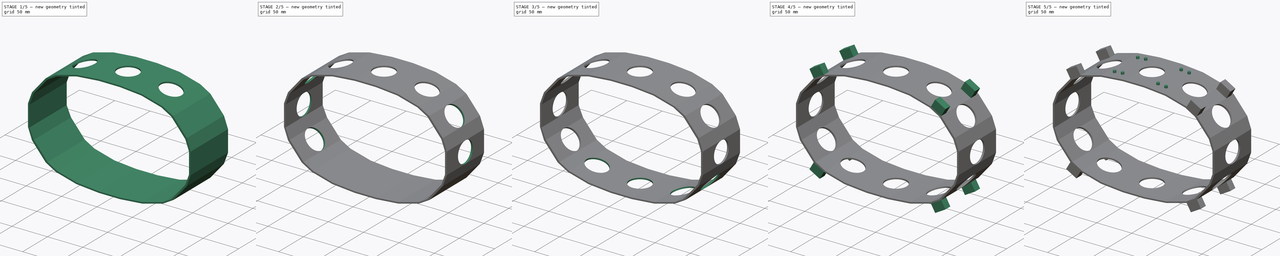
[diagram: build sequence overview — one tinted view per stage of 5, left to right]
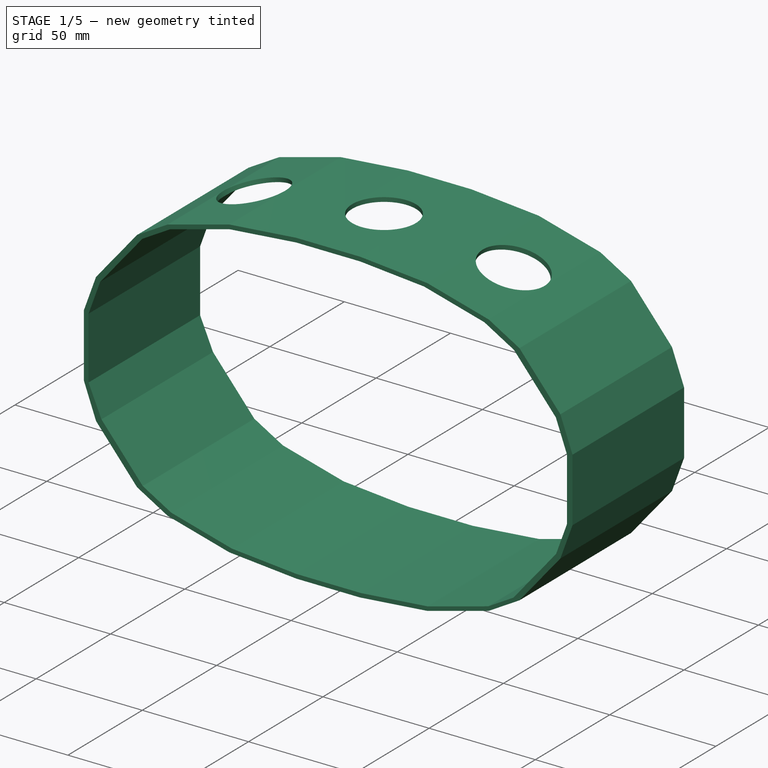
[diagram: stage 1 of 5 — iso view after this stage's code; geometry added in this stage tinted green]
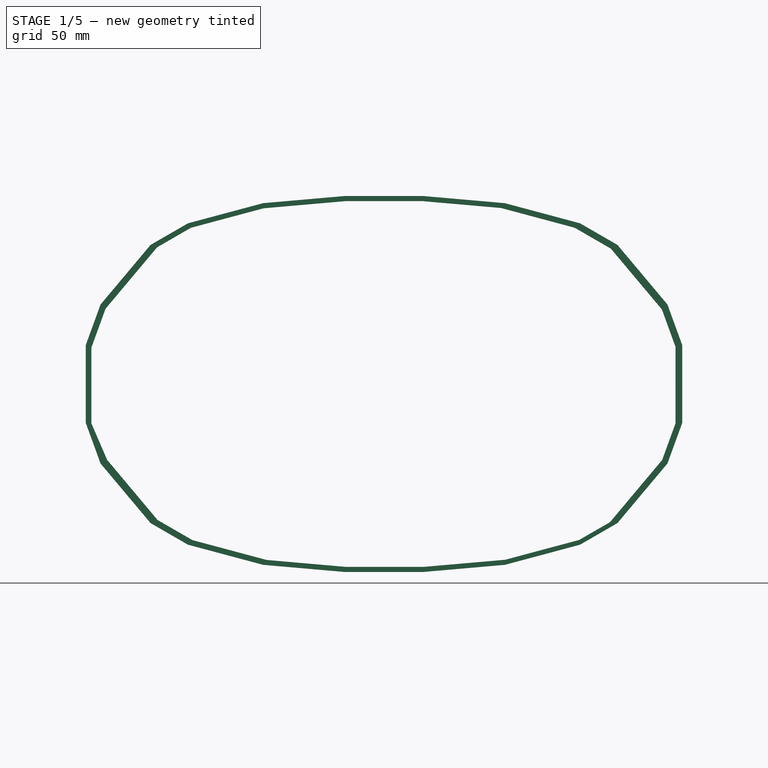
[diagram: stage 1 of 5 — front view after this stage's code; geometry added in this stage tinted green]
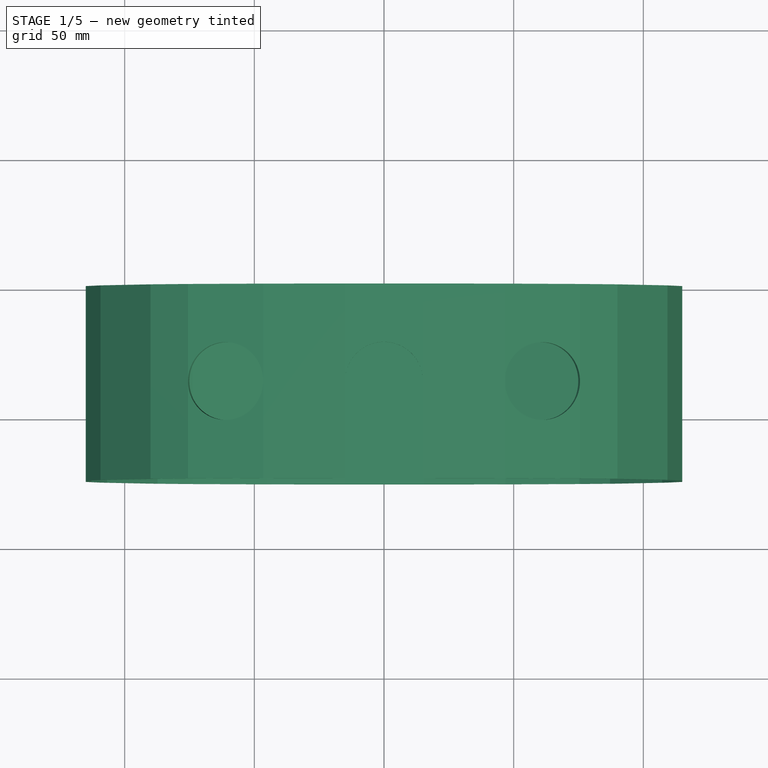
[diagram: stage 1 of 5 — top view after this stage's code; geometry added in this stage tinted green]
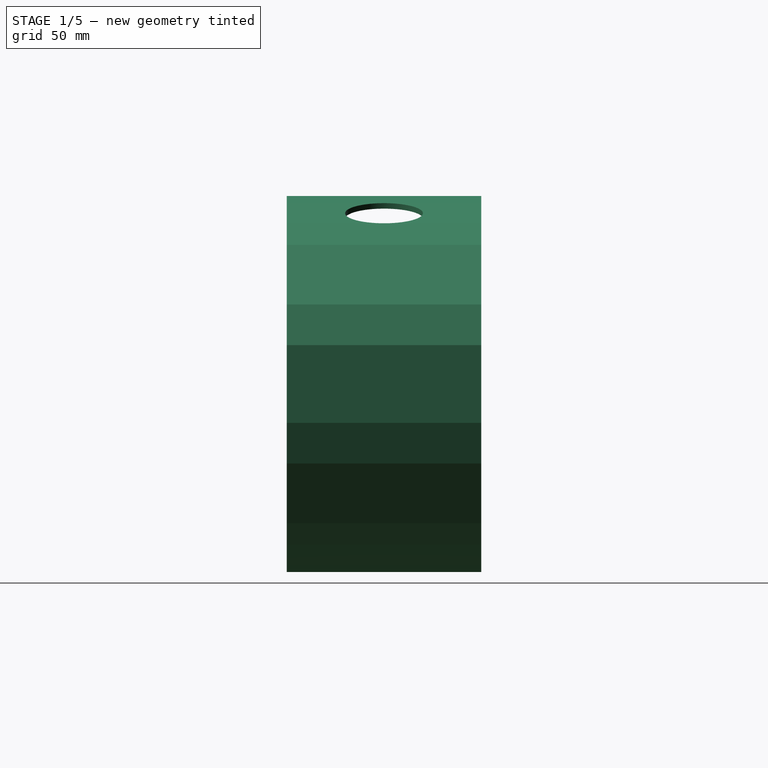
[diagram: stage 1 of 5 — right view after this stage's code; geometry added in this stage tinted green]
FCSTD DOCUMENT  (FreeCAD 0.20R29177 +233 (Git))
Label: btm_spr_modl_sh03
License: All rights reserved
LicenseURL: http://en.wikipedia.org/wiki/All_rights_reserved
objects: Sketcher::SketchObject×22, PartDesign::Pocket×12, PartDesign::Pad×10, Spreadsheet::Sheet×1, PartDesign::Body×1
note: 67 computed .brp shape members not serialized (recipe doc carries the construction recipe); baked Part::Feature solids carry a one-line shape summary decoded from their .brp

FEATURE [Spreadsheet::Sheet] Spreadsheet
  cells = B2=top ; C2=spring; D2=module; B4=horizon; C4(hrz)=230; B5=vertical; C5(vrt)=145; B6=spring place; C6(spl)=30; B7=angle10; C7(an10)=5; B8=angle20; C8(an20)=15; B9=angl30; C9(an30)=30; B10=angl50; C10(an50)=50; B11=an70; C11(an70)=70; B12=body; C12(body)=15; B13=bottm; C13(btm)=2; B14=rad hole; C14(hol_rad)=15; B15=dip hole; C15(hol_dp)=3; B16=shift hole; C16(hole_sh)=37.5
FEATURE [Sketcher::SketchObject] Sketch
  FullyConstrained = false
  MapMode = 5
  Placement = pos=(0,0,0) rot=(1,0,0;1.5708rad)
  Support = -> [XZ_Plane]
  expr: Constraints[105] = Spreadsheet.btm
  expr: Constraints[11] = Spreadsheet.hrz
  expr: Constraints[13] = Spreadsheet.an10
  expr: Constraints[15] = Spreadsheet.spl
  expr: Constraints[16] = Spreadsheet.an20
  expr: Constraints[18] = Spreadsheet.an30
  expr: Constraints[20] = Spreadsheet.spl
  expr: Constraints[21] = Spreadsheet.an50
  expr: Constraints[24] = Spreadsheet.an70
  expr: Constraints[2] = Spreadsheet.spl
  expr: Constraints[57] = Spreadsheet.btm
  expr: Constraints[58] = Spreadsheet.spl
  expr: Constraints[6] = Spreadsheet.vrt
  expr: Constraints[7] = Spreadsheet.spl
  sketch-geometry (48):
    g0: LineSegment StartX=-115 StartY=15 StartZ=0 EndX=-115 EndY=-15 EndZ=0
    g1: LineSegment StartX=115 StartY=15 StartZ=0 EndX=115 EndY=-15 EndZ=0
    g2: LineSegment StartX=-15 StartY=72.5 StartZ=0 EndX=15 EndY=72.5 EndZ=0
    g3: LineSegment StartX=-15 StartY=-72.5 StartZ=0 EndX=15 EndY=-72.5 EndZ=0
    g4: LineSegment StartX=15 StartY=72.5 StartZ=0 EndX=46.6098 EndY=69.7345 EndZ=0
    g5: LineSegment StartX=46.6098 StartY=69.7345 StartZ=0 EndX=75.5875 EndY=61.9699 EndZ=0
    g6: LineSegment StartX=75.5875 StartY=61.9699 StartZ=0 EndX=90.0175 EndY=53.6388 EndZ=0
    g7: LineSegment StartX=90.0175 StartY=53.6388 StartZ=0 EndX=109.301 EndY=30.6574 EndZ=0
    g8: LineSegment StartX=109.301 StartY=30.6574 StartZ=0 EndX=115 EndY=15 EndZ=0
    g9: LineSegment StartX=-15 StartY=72.5 StartZ=0 EndX=-46.6098 EndY=69.7345 EndZ=0
    g10: LineSegment StartX=-46.6098 StartY=69.7345 StartZ=0 EndX=-75.5875 EndY=61.9699 EndZ=0
    g11: LineSegment StartX=-75.5875 StartY=61.9699 StartZ=0 EndX=-90.0175 EndY=53.6388 EndZ=0
    g12: LineSegment StartX=-90.0175 StartY=53.6388 StartZ=0 EndX=-109.301 EndY=30.6574 EndZ=0
    g13: LineSegment StartX=-109.301 StartY=30.6574 StartZ=0 EndX=-115 EndY=15 EndZ=0
    g14: LineSegment StartX=-115 StartY=-15 StartZ=0 EndX=-109.301 EndY=-30.6574 EndZ=0
    g15: LineSegment StartX=-109.301 StartY=-30.6574 StartZ=0 EndX=-90.0175 EndY=-53.6388 EndZ=0
    g16: LineSegment StartX=-90.0175 StartY=-53.6388 StartZ=0 EndX=-75.5875 EndY=-61.9699 EndZ=0
    g17: LineSegment StartX=-75.5875 StartY=-61.9699 StartZ=0 EndX=-46.6098 EndY=-69.7345 EndZ=0
    g18: LineSegment StartX=-46.6098 StartY=-69.7345 StartZ=0 EndX=-15 EndY=-72.5 EndZ=0
    g19: LineSegment StartX=15 StartY=-72.5 StartZ=0 EndX=46.6098 EndY=-69.7345 EndZ=0
    g20: LineSegment StartX=46.6098 StartY=-69.7345 StartZ=0 EndX=75.5875 EndY=-61.9699 EndZ=0
    g21: LineSegment StartX=75.5875 StartY=-61.9699 StartZ=0 EndX=90.0175 EndY=-53.6388 EndZ=0
    g22: LineSegment StartX=90.0175 StartY=-53.6388 StartZ=0 EndX=109.301 EndY=-30.6574 EndZ=0
    g23: LineSegment StartX=109.301 StartY=-30.6574 StartZ=0 EndX=115 EndY=-15 EndZ=0
    g24: LineSegment StartX=-15 StartY=70.5 StartZ=0 EndX=15 EndY=70.5 EndZ=0
    g25: LineSegment StartX=-15 StartY=70.5 StartZ=0 EndX=-46.4214 EndY=67.751 EndZ=0
    g26: LineSegment StartX=-46.4214 StartY=67.751 StartZ=0 EndX=-74.4554 EndY=60.2393 EndZ=0
    g27: LineSegment StartX=-74.4554 StartY=60.2393 StartZ=0 EndX=-87.4996 EndY=52.7082 EndZ=0
    g28: LineSegment StartX=-87.4996 StartY=52.7082 StartZ=0 EndX=-107.378 EndY=29.0181 EndZ=0
    g29: LineSegment StartX=-107.378 StartY=29.0181 StartZ=0 EndX=-112.824 EndY=14.0555 EndZ=0
    g30: LineSegment StartX=-112.824 StartY=14.0555 StartZ=0 EndX=-112.824 EndY=-15.2096 EndZ=0
    g31: LineSegment StartX=15 StartY=70.5 StartZ=0 EndX=45.1475 EndY=67.8624 EndZ=0
    g32: LineSegment StartX=45.1475 StartY=67.8624 StartZ=0 EndX=73.5018 EndY=60.2649 EndZ=0
    g33: LineSegment StartX=73.5018 StartY=60.2649 StartZ=0 EndX=87.4929 EndY=52.1871 EndZ=0
    g34: LineSegment StartX=87.4929 StartY=52.1871 StartZ=0 EndX=107.166 EndY=28.7411 EndZ=0
    g35: LineSegment StartX=107.166 StartY=28.7411 StartZ=0 EndX=112.425 EndY=14.2934 EndZ=0
    g36: LineSegment StartX=112.425 StartY=14.2934 StartZ=0 EndX=112.425 EndY=-15.1293 EndZ=0
    g37: LineSegment StartX=112.425 StartY=-15.1293 StartZ=0 EndX=107.269 EndY=-29.2953 EndZ=0
    g38: LineSegment StartX=107.269 StartY=-29.2953 StartZ=0 EndX=87.141 EndY=-53.2828 EndZ=0
    g39: LineSegment StartX=87.141 StartY=-53.2828 StartZ=0 EndX=75.2863 EndY=-60.1272 EndZ=0
    g40: LineSegment StartX=75.2863 StartY=-60.1272 StartZ=0 EndX=46.7497 EndY=-67.7735 EndZ=0
    g41: LineSegment StartX=46.7497 StartY=-67.7735 StartZ=0 EndX=15.5585 EndY=-70.5024 EndZ=0
    g42: LineSegment StartX=15.5585 StartY=-70.5024 StartZ=0 EndX=-14.9018 EndY=-70.5024 EndZ=0
    g43: LineSegment StartX=-14.9018 StartY=-70.5024 StartZ=0 EndX=-45.3109 EndY=-67.842 EndZ=0
    g44: LineSegment StartX=-45.3109 StartY=-67.842 StartZ=0 EndX=-73.8953 EndY=-60.1828 EndZ=0
    g45: LineSegment StartX=-73.8953 StartY=-60.1828 StartZ=0 EndX=-87.3183 EndY=-52.433 EndZ=0
    g46: LineSegment StartX=-87.3183 StartY=-52.433 StartZ=0 EndX=-106.756 EndY=-29.2685 EndZ=0
    g47: LineSegment StartX=-106.756 StartY=-29.2685 StartZ=0 EndX=-112.824 EndY=-15.2096 EndZ=0
  constraints (106):
    c: Vertical(g0)
    c: Horizontal(g3)
    c: DistanceX(g2,g2) = 30
    c: Symmetric(g2,g2,g-2)
    c: Equal(g3,g2)
    c: Symmetric(g2,g3,g-1)
    c: Distance(g3,g2) = 145
    c: DistanceY(g1,g1) = 30
    c: Equal(g1,g0)
    c: Symmetric(g1,g1,g-1)
    c: Symmetric(g1,g0,g-1)
    c: Distance(g1,g0) = 230
    c: Coincident(g4,g2)
    c: Angle(g4,g-1) = 0.0872665
    c: Coincident(g5,g4)
    c: Distance(g4,g5) = 30
    c: Angle(g5,g-1) = 0.261799
    c: Coincident(g6,g5)
    c: Angle(g6,g-1) = 0.523599
    c: Coincident(g7,g6)
    c: Distance(g6,g7) = 30
    c: Angle(g7,g-1) = 0.872665
    c: Coincident(g8,g7)
    c: Coincident(g8,g1)
    c: Angle(g8,g-1) = 1.22173
    c: Equal(g6,g8)
    c: Coincident(g9,g2)
    c: Symmetric(g9,g4,g-2)
    c: Coincident(g10,g9)
    c: Symmetric(g10,g5,g-2)
    c: Coincident(g11,g10)
    c: Symmetric(g11,g6,g-2)
    c: Coincident(g12,g11)
    c: Symmetric(g12,g7,g-2)
    c: Coincident(g13,g12)
    c: Coincident(g13,g0)
    c: Coincident(g14,g0)
    c: Coincident(g15,g14)
    c: Coincident(g16,g15)
    c: Coincident(g17,g16)
    c: Coincident(g18,g17)
    c: Coincident(g18,g3)
    c: Symmetric(g14,g7,g-1)
    c: Symmetric(g15,g6,g-1)
    c: Symmetric(g16,g5,g-1)
    c: Symmetric(g17,g4,g-1)
    c: Coincident(g19,g3)
    c: Coincident(g20,g19)
    c: Coincident(g21,g20)
    c: Coincident(g22,g21)
    c: Coincident(g23,g22)
    c: Coincident(g23,g1)
    c: Symmetric(g19,g4,g-1)
    c: Symmetric(g20,g5,g-1)
    c: Symmetric(g21,g6,g-1)
    c: Symmetric(g22,g7,g-1)
    c: Symmetric(g24,g24,g-2)
    c: Distance(g24,g2) = 2
    c: DistanceX(g24,g24) = 30
    c: Coincident(g25,g24)
    c: Parallel(g9,g25)
    c: Coincident(g26,g25)
    c: Parallel(g10,g26)
    c: Coincident(g27,g26)
    c: Parallel(g11,g27)
    c: Coincident(g28,g27)
    c: Parallel(g12,g28)
    c: Coincident(g29,g28)
    c: Parallel(g13,g29)
    c: Coincident(g30,g29)
    c: Parallel(g0,g30)
    c: Coincident(g31,g24)
    c: Parallel(g4,g31)
    c: Coincident(g32,g31)
    c: Parallel(g5,g32)
    c: Coincident(g33,g32)
    c: Parallel(g6,g33)
    c: Coincident(g34,g33)
    c: Parallel(g7,g34)
    c: Coincident(g35,g34)
    c: Parallel(g8,g35)
    c: Coincident(g36,g35)
    c: Vertical(g36)
    c: Coincident(g37,g36)
    c: Parallel(g23,g37)
    c: Coincident(g38,g37)
    c: Parallel(g22,g38)
    c: Coincident(g39,g38)
    c: Parallel(g21,g39)
    c: Coincident(g40,g39)
    c: Parallel(g20,g40)
    c: Coincident(g41,g40)
    c: Parallel(g19,g41)
    c: Coincident(g42,g41)
    c: Horizontal(g42)
    c: Coincident(g43,g42)
    c: Parallel(g18,g43)
    c: Coincident(g44,g43)
    c: Parallel(g17,g44)
    c: Coincident(g45,g44)
    c: Parallel(g16,g45)
    c: Coincident(g46,g45)
    c: Parallel(g15,g46)
    c: Coincident(g47,g46)
    c: Coincident(g47,g30)
    c: Distance(g3,g42) = 2
FEATURE [PartDesign::Pad] Pad
  Direction = (1,1,1)
  Length = 75
  Length2 = 100
  Placement = pos=(0,0,0) rot=(1,0,0;1.5708rad)
  Profile = -> Sketch
  Type = 0
FEATURE [Sketcher::SketchObject] Sketch001
  FullyConstrained = true
  MapMode = 5
  Placement = pos=(0,0,72.5) rot=(0,0,1;3.14159rad)
  Support = -> [Pad]
  sketch-geometry (1):
    g0: Circle CenterX=0 CenterY=37.5 CenterZ=0 NormalX=0 NormalY=0 NormalZ=1 AngleXU=0 Radius=15
  constraints (3):
    c: PointOnObject(g0,g-2)
    c: Distance(g-1,g0) = 37.5
    c: Radius(g0) = 15
FEATURE [PartDesign::Pocket] Pocket
  BaseFeature = -> Pad
  Direction = (1,1,1)
  Length = 3
  Length2 = 100
  Placement = pos=(0,0,0) rot=(1,0,0;1.5708rad)
  Profile = -> Sketch001
  Type = 0
FEATURE [Sketcher::SketchObject] Sketch002
  ExternalGeometry = -> [Pocket]
  FullyConstrained = true
  MapMode = 5
  Placement = pos=(20.5559,0,76.7156) rot=(0.130526,0,0.991445;3.14159rad)
  Support = -> [Pocket]
  expr: Constraints[1] = Spreadsheet.hol_rad
  sketch-geometry (1):
    g0: Circle CenterX=-41.973 CenterY=37.5 CenterZ=0 NormalX=0 NormalY=0 NormalZ=1 AngleXU=0 Radius=15
  constraints (3):
    c: Tangent(g0,g-3)
    c: Radius(g0) = 15
    c: Distance(g0,g-1) = 37.5
FEATURE [PartDesign::Pocket] Pocket001
  BaseFeature = -> Pocket
  Direction = (1,1,1)
  Length = 3
  Length2 = 100
  Placement = pos=(0,0,0) rot=(1,0,0;1.5708rad)
  Profile = -> Sketch002
  Type = 0
  expr: Length = Spreadsheet.hol_dp
FEATURE [Sketcher::SketchObject] Sketch003
  ExternalGeometry = -> [Pocket001]
  FullyConstrained = true
  MapMode = 5
  Placement = pos=(-20.5559,0,76.7156) rot=(-0.130526,0,0.991445;3.14159rad)
  Support = -> [Pocket001]
  expr: Constraints[1] = Spreadsheet.hol_rad
  expr: Constraints[2] = Spreadsheet.hole_sh
  sketch-geometry (1):
    g0: Circle CenterX=41.973 CenterY=37.5 CenterZ=0 NormalX=0 NormalY=0 NormalZ=1 AngleXU=0 Radius=15
  constraints (3):
    c: Tangent(g0,g-3)
    c: Radius(g0) = 15
    c: Distance(g0,g-1) = 37.5
FEATURE [PartDesign::Pocket] Pocket002
  BaseFeature = -> Pocket001
  Direction = (1,1,1)
  Length = 3
  Length2 = 100
  Placement = pos=(0,0,0) rot=(1,0,0;1.5708rad)
  Profile = -> Sketch003
  Type = 0
  expr: Length = Spreadsheet.hol_dp
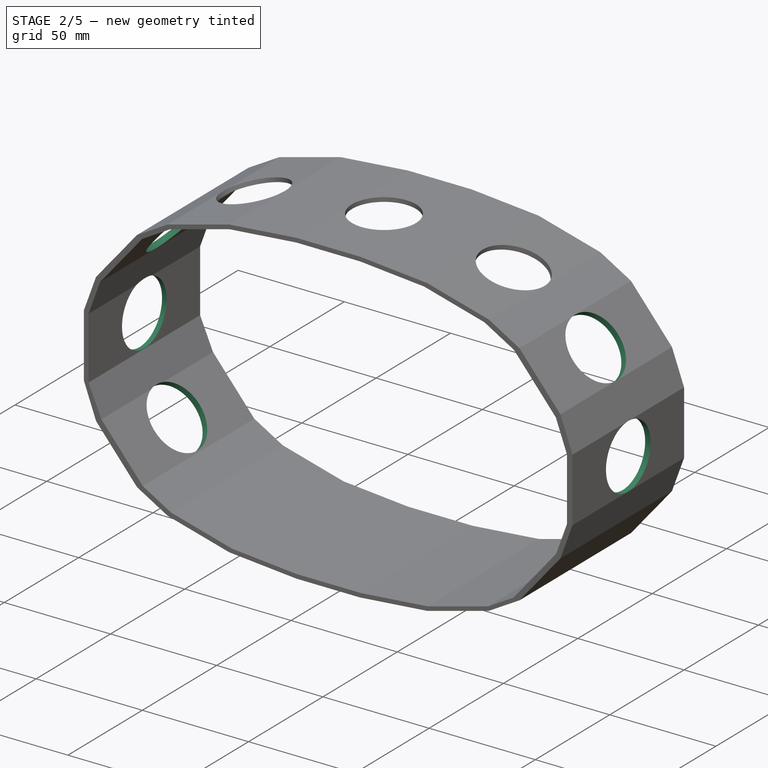
[diagram: stage 2 of 5 — iso view after this stage's code; geometry added in this stage tinted green]
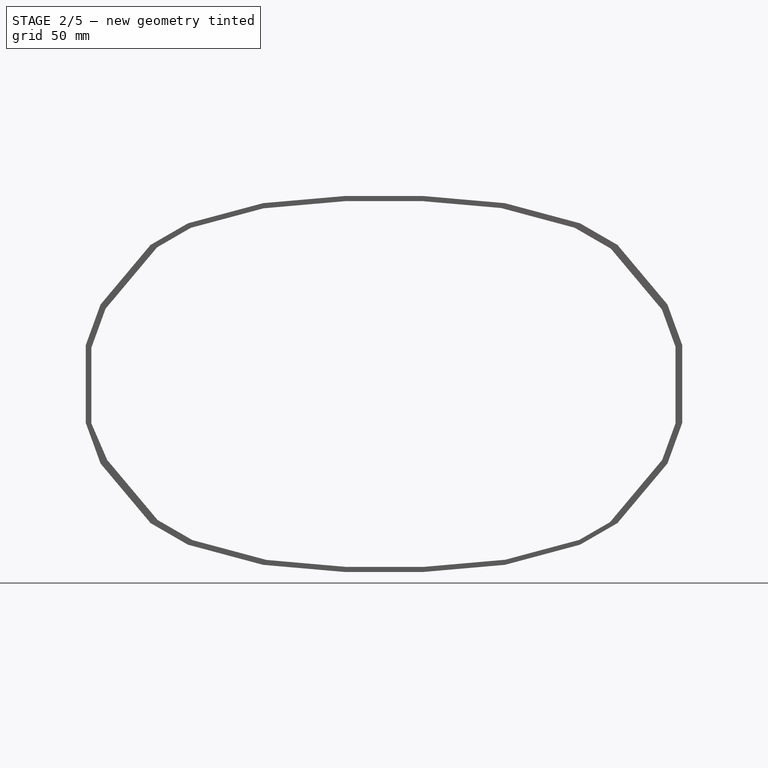
[diagram: stage 2 of 5 — front view after this stage's code; geometry added in this stage tinted green]
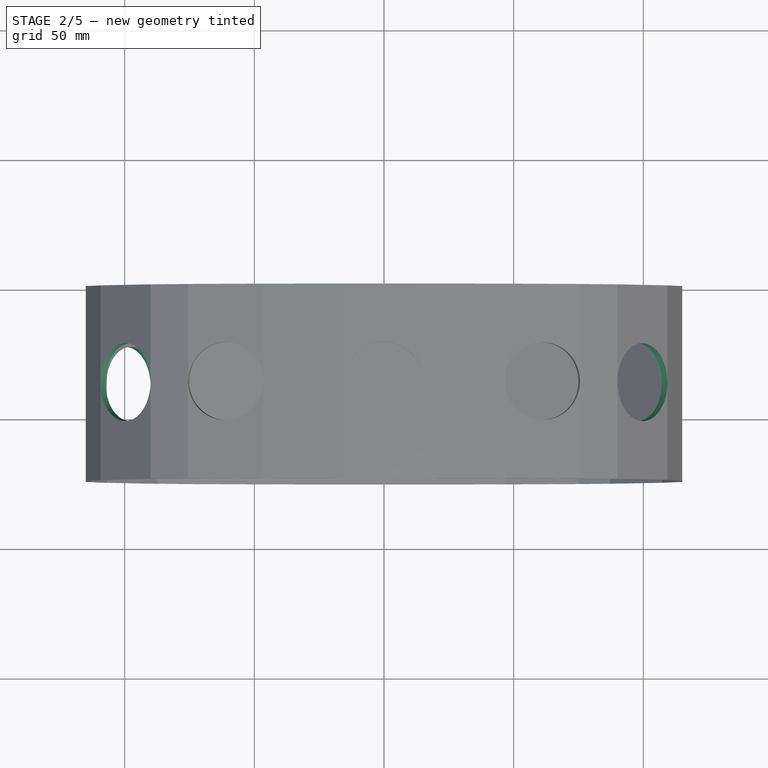
[diagram: stage 2 of 5 — top view after this stage's code; geometry added in this stage tinted green]
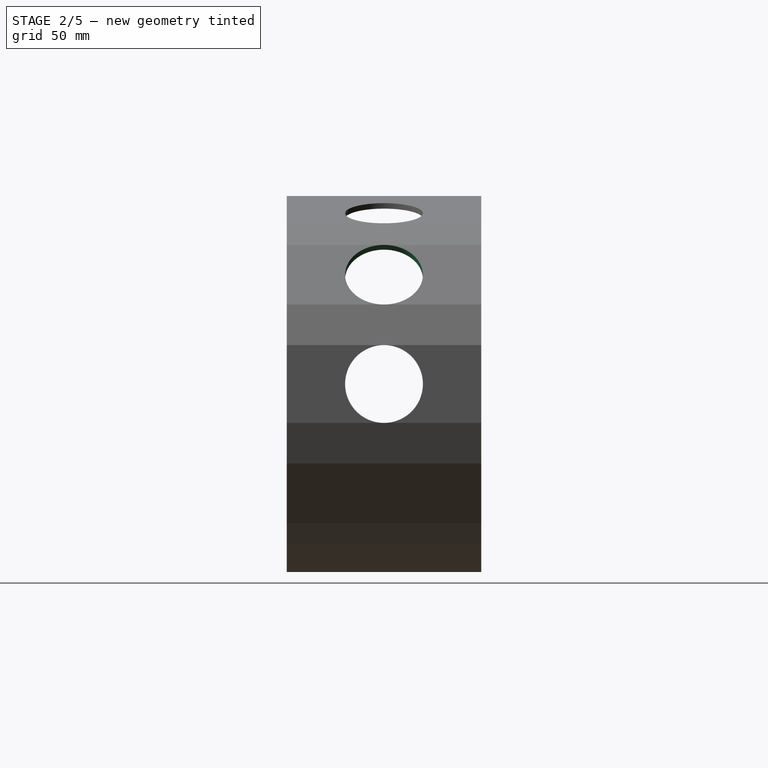
[diagram: stage 2 of 5 — right view after this stage's code; geometry added in this stage tinted green]
FEATURE [Sketcher::SketchObject] Sketch004
  ExternalGeometry = -> [Pocket002]
  FullyConstrained = true
  MapMode = 5
  Placement = pos=(79.2364,0,66.4872) rot=(0.422618,0,0.906308;3.14159rad)
  Support = -> [Pocket002]
  expr: Constraints[1] = Spreadsheet.hol_rad
  expr: Constraints[2] = Spreadsheet.hole_sh
  sketch-geometry (1):
    g0: Circle CenterX=-31.7725 CenterY=37.5 CenterZ=0 NormalX=0 NormalY=0 NormalZ=1 AngleXU=0 Radius=15
  constraints (3):
    c: Tangent(g0,g-3)
    c: Radius(g0) = 15
    c: Distance(g0,g-1) = 37.5
FEATURE [PartDesign::Pocket] Pocket003
  BaseFeature = -> Pocket002
  Direction = (1,1,1)
  Length = 3
  Length2 = 100
  Placement = pos=(0,0,0) rot=(1,0,0;1.5708rad)
  Profile = -> Sketch004
  Type = 0
  expr: Length = Spreadsheet.hol_dp
FEATURE [Sketcher::SketchObject] Sketch005
  ExternalGeometry = -> [Pocket003]
  FullyConstrained = true
  MapMode = 5
  Placement = pos=(-79.2364,0,66.4872) rot=(-0.422618,0,0.906308;3.14159rad)
  Support = -> [Pocket003]
  expr: Constraints[1] = Spreadsheet.hol_rad
  expr: Constraints[2] = Spreadsheet.hole_sh
  sketch-geometry (1):
    g0: Circle CenterX=31.7725 CenterY=37.5 CenterZ=0 NormalX=0 NormalY=0 NormalZ=1 AngleXU=0 Radius=15
  constraints (3):
    c: Tangent(g0,g-3)
    c: Radius(g0) = 15
    c: Distance(g0,g-1) = 37.5
FEATURE [PartDesign::Pocket] Pocket004
  BaseFeature = -> Pocket003
  Direction = (1,1,1)
  Length = 3
  Length2 = 100
  Placement = pos=(0,0,0) rot=(1,0,0;1.5708rad)
  Profile = -> Sketch005
  Type = 0
  expr: Length = Spreadsheet.hol_dp
FEATURE [Sketcher::SketchObject] Sketch006
  FullyConstrained = true
  MapMode = 5
  Placement = pos=(115,0,0) rot=(0.707107,0,0.707107;3.14159rad)
  Support = -> [Pocket004]
  expr: Constraints[1] = Spreadsheet.hol_rad
  expr: Constraints[2] = Spreadsheet.hole_sh
  sketch-geometry (1):
    g0: Circle CenterX=0 CenterY=37.5 CenterZ=0 NormalX=0 NormalY=0 NormalZ=1 AngleXU=0 Radius=15
  constraints (3):
    c: PointOnObject(g0,g-2)
    c: Radius(g0) = 15
    c: Distance(g-1,g0) = 37.5
FEATURE [PartDesign::Pocket] Pocket005
  BaseFeature = -> Pocket004
  Direction = (1,1,1)
  Length = 3
  Length2 = 100
  Placement = pos=(0,0,0) rot=(1,0,0;1.5708rad)
  Profile = -> Sketch006
  Type = 0
  expr: Length = Spreadsheet.hol_dp
FEATURE [Sketcher::SketchObject] Sketch007
  FullyConstrained = true
  MapMode = 5
  Placement = pos=(-115,0,0) rot=(0.707107,0,-0.707107;3.14159rad)
  Support = -> [Pocket005]
  expr: Constraints[1] = Spreadsheet.hol_rad
  expr: Constraints[2] = Spreadsheet.hole_sh
  sketch-geometry (1):
    g0: Circle CenterX=0 CenterY=37.5 CenterZ=0 NormalX=0 NormalY=0 NormalZ=1 AngleXU=0 Radius=15
  constraints (3):
    c: PointOnObject(g0,g-2)
    c: Radius(g0) = 15
    c: Distance(g-1,g0) = 37.5
FEATURE [PartDesign::Pocket] Pocket006
  BaseFeature = -> Pocket005
  Direction = (1,1,1)
  Length = 3
  Length2 = 100
  Placement = pos=(0,0,0) rot=(1,0,0;1.5708rad)
  Profile = -> Sketch007
  Type = 0
  expr: Length = Spreadsheet.hol_dp
FEATURE [Sketcher::SketchObject] Sketch008
  ExternalGeometry = -> [Pocket006]
  FullyConstrained = true
  MapMode = 5
  Placement = pos=(-79.2364,0,-66.4872) rot=(0.906308,0,-0.422618;3.14159rad)
  Support = -> [Pocket006]
  expr: Constraints[1] = Spreadsheet.hol_rad
  expr: Constraints[2] = Spreadsheet.hole_sh
  sketch-geometry (1):
    g0: Circle CenterX=-31.7725 CenterY=37.5 CenterZ=0 NormalX=0 NormalY=0 NormalZ=1 AngleXU=0 Radius=15
  constraints (3):
    c: Tangent(g0,g-3)
    c: Radius(g0) = 15
    c: Distance(g0,g-1) = 37.5
FEATURE [PartDesign::Pocket] Pocket007
  BaseFeature = -> Pocket006
  Direction = (1,1,1)
  Length = 3
  Length2 = 100
  Placement = pos=(0,0,0) rot=(1,0,0;1.5708rad)
  Profile = -> Sketch008
  Type = 0
  expr: Length = Spreadsheet.hol_dp
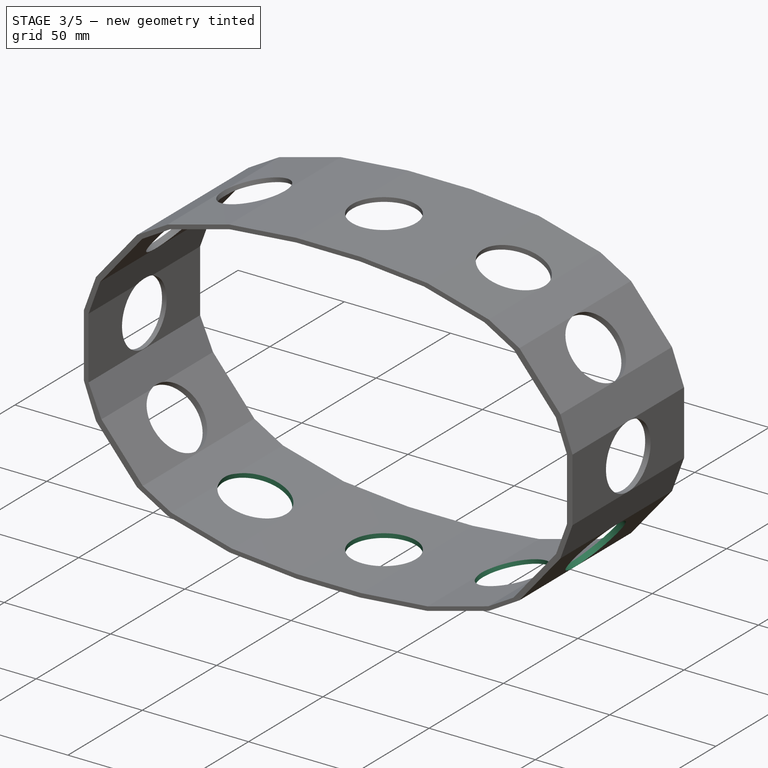
[diagram: stage 3 of 5 — iso view after this stage's code; geometry added in this stage tinted green]
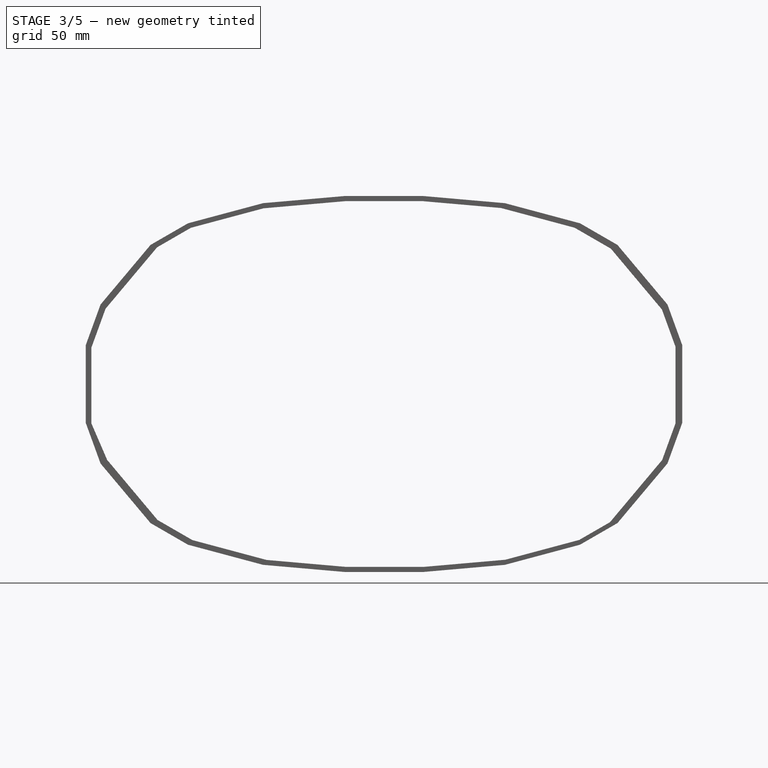
[diagram: stage 3 of 5 — front view after this stage's code; geometry added in this stage tinted green]
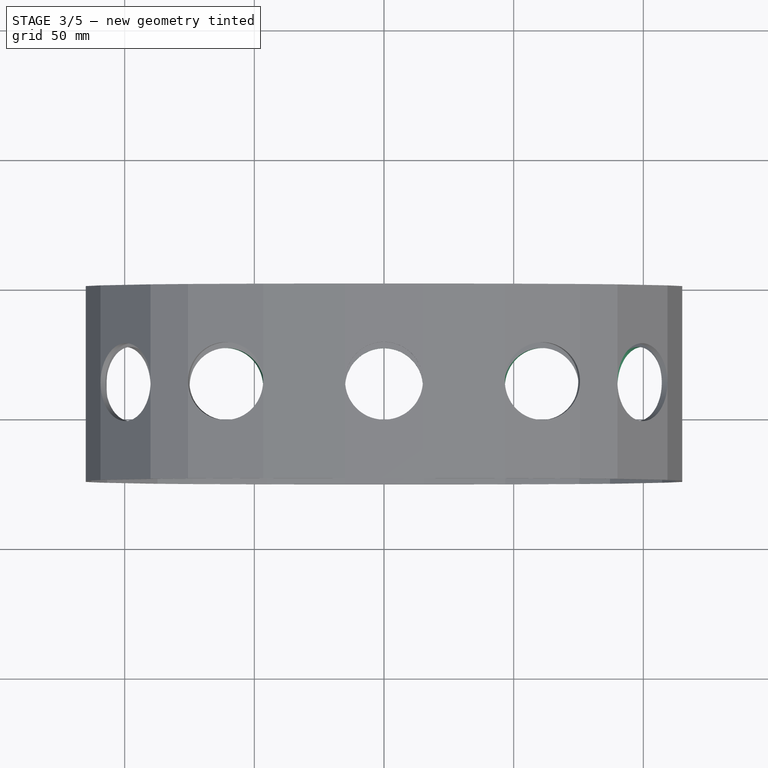
[diagram: stage 3 of 5 — top view after this stage's code; geometry added in this stage tinted green]
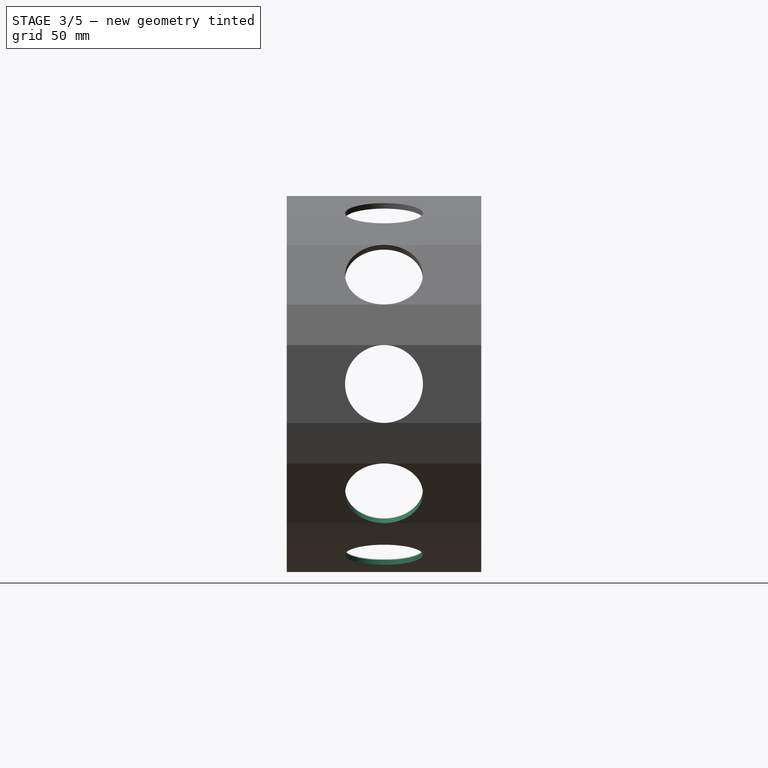
[diagram: stage 3 of 5 — right view after this stage's code; geometry added in this stage tinted green]
FEATURE [Sketcher::SketchObject] Sketch009
  ExternalGeometry = -> [Pocket007]
  FullyConstrained = true
  MapMode = 5
  Placement = pos=(-20.5559,0,-76.7156) rot=(0.991445,0,-0.130526;3.14159rad)
  Support = -> [Pocket007]
  expr: Constraints[1] = Spreadsheet.hol_rad
  expr: Constraints[2] = Spreadsheet.hole_sh
  sketch-geometry (1):
    g0: Circle CenterX=-41.973 CenterY=37.5 CenterZ=0 NormalX=0 NormalY=0 NormalZ=1 AngleXU=0 Radius=15
  constraints (3):
    c: Tangent(g0,g-3)
    c: Radius(g0) = 15
    c: Distance(g0,g-1) = 37.5
FEATURE [PartDesign::Pocket] Pocket008
  BaseFeature = -> Pocket007
  Direction = (1,1,1)
  Length = 3
  Length2 = 100
  Placement = pos=(0,0,0) rot=(1,0,0;1.5708rad)
  Profile = -> Sketch009
  Type = 0
  expr: Length = Spreadsheet.hol_dp
FEATURE [Sketcher::SketchObject] Sketch010
  FullyConstrained = true
  MapMode = 5
  Placement = pos=(0,0,-72.5) rot=(1,0,0;3.14159rad)
  Support = -> [Pocket008]
  expr: Constraints[1] = Spreadsheet.hol_rad
  expr: Constraints[2] = Spreadsheet.hole_sh
  sketch-geometry (1):
    g0: Circle CenterX=0 CenterY=37.5 CenterZ=0 NormalX=0 NormalY=0 NormalZ=1 AngleXU=0 Radius=15
  constraints (3):
    c: PointOnObject(g0,g-2)
    c: Radius(g0) = 15
    c: Distance(g-1,g0) = 37.5
FEATURE [PartDesign::Pocket] Pocket009
  BaseFeature = -> Pocket008
  Direction = (1,1,1)
  Length = 3
  Length2 = 100
  Placement = pos=(0,0,0) rot=(1,0,0;1.5708rad)
  Profile = -> Sketch010
  Type = 0
  expr: Length = Spreadsheet.hol_dp
FEATURE [Sketcher::SketchObject] Sketch011
  ExternalGeometry = -> [Pocket009]
  FullyConstrained = true
  MapMode = 5
  Placement = pos=(20.5559,0,-76.7156) rot=(0.991445,0,0.130526;3.14159rad)
  Support = -> [Pocket009]
  expr: Constraints[1] = Spreadsheet.hol_rad
  expr: Constraints[2] = Spreadsheet.hole_sh
  sketch-geometry (1):
    g0: Circle CenterX=41.973 CenterY=37.5 CenterZ=0 NormalX=0 NormalY=0 NormalZ=1 AngleXU=0 Radius=15
  constraints (3):
    c: Tangent(g0,g-3)
    c: Radius(g0) = 15
    c: Distance(g0,g-1) = 37.5
FEATURE [PartDesign::Pocket] Pocket010
  BaseFeature = -> Pocket009
  Direction = (1,1,1)
  Length = 3
  Length2 = 100
  Placement = pos=(0,0,0) rot=(1,0,0;1.5708rad)
  Profile = -> Sketch011
  Type = 0
  expr: Length = Spreadsheet.hol_dp
FEATURE [Sketcher::SketchObject] Sketch012
  ExternalGeometry = -> [Pocket010]
  FullyConstrained = true
  MapMode = 5
  Placement = pos=(79.2364,0,-66.4872) rot=(0.906308,0,0.422618;3.14159rad)
  Support = -> [Pocket010]
  expr: Constraints[1] = Spreadsheet.hol_rad
  expr: Constraints[2] = Spreadsheet.hole_sh
  sketch-geometry (1):
    g0: Circle CenterX=31.7725 CenterY=37.5 CenterZ=0 NormalX=0 NormalY=0 NormalZ=1 AngleXU=0 Radius=15
  constraints (3):
    c: Tangent(g0,g-3)
    c: Radius(g0) = 15
    c: Distance(g0,g-1) = 37.5
FEATURE [PartDesign::Pocket] Pocket011
  BaseFeature = -> Pocket010
  Direction = (1,1,1)
  Length = 3
  Length2 = 100
  Placement = pos=(0,0,0) rot=(1,0,0;1.5708rad)
  Profile = -> Sketch012
  Type = 0
  expr: Length = Spreadsheet.hol_dp
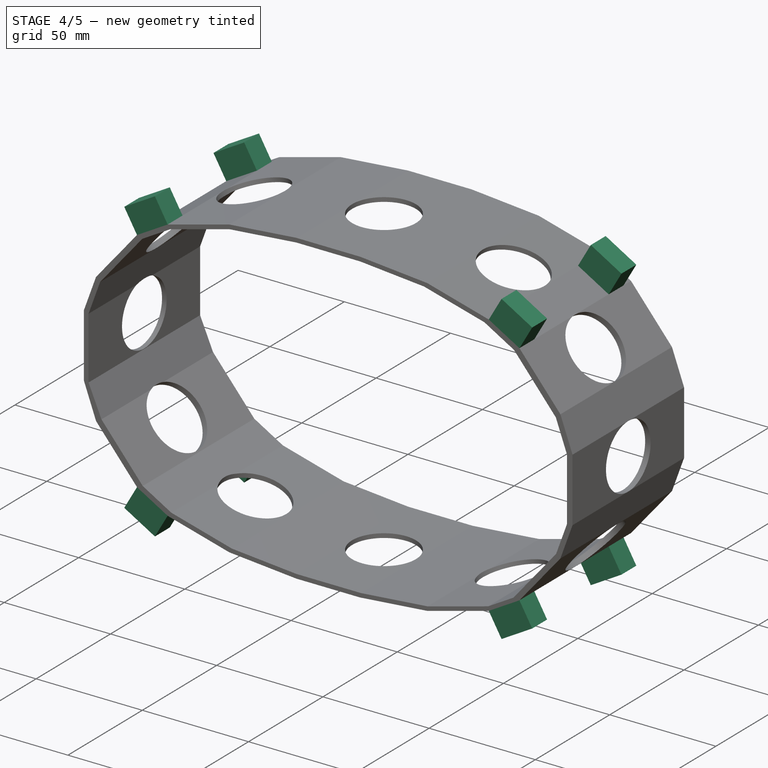
[diagram: stage 4 of 5 — iso view after this stage's code; geometry added in this stage tinted green]
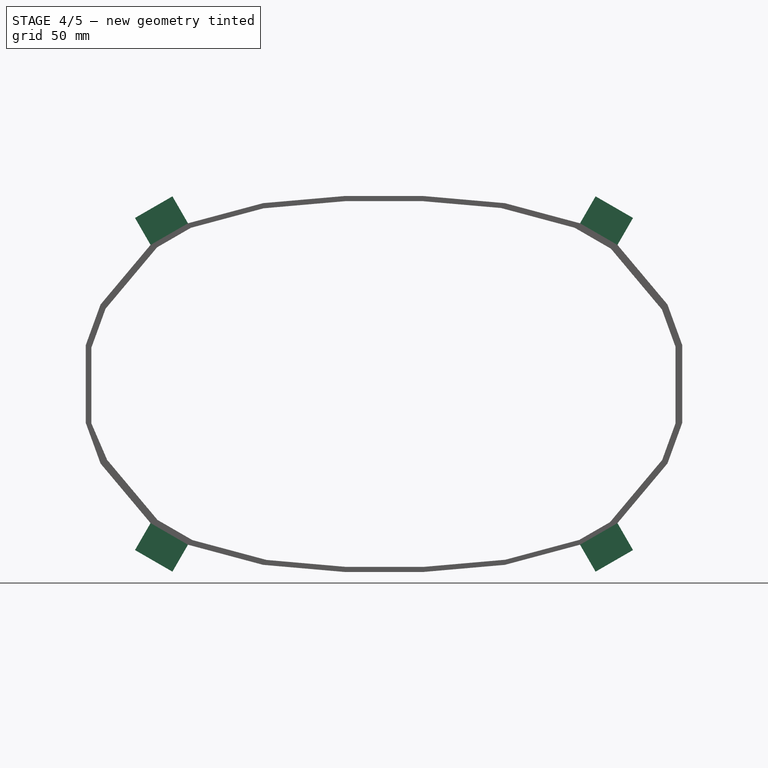
[diagram: stage 4 of 5 — front view after this stage's code; geometry added in this stage tinted green]
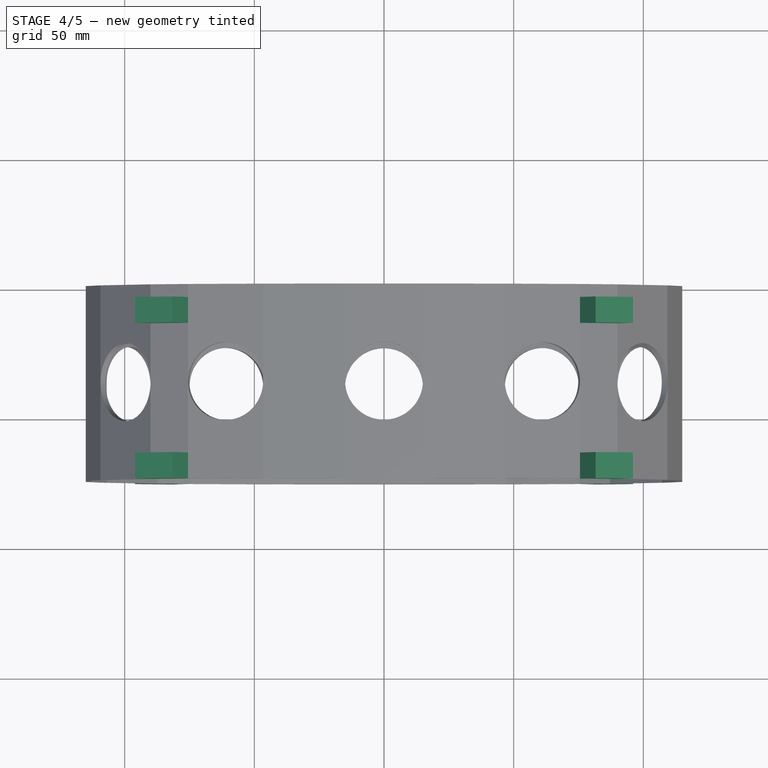
[diagram: stage 4 of 5 — top view after this stage's code; geometry added in this stage tinted green]
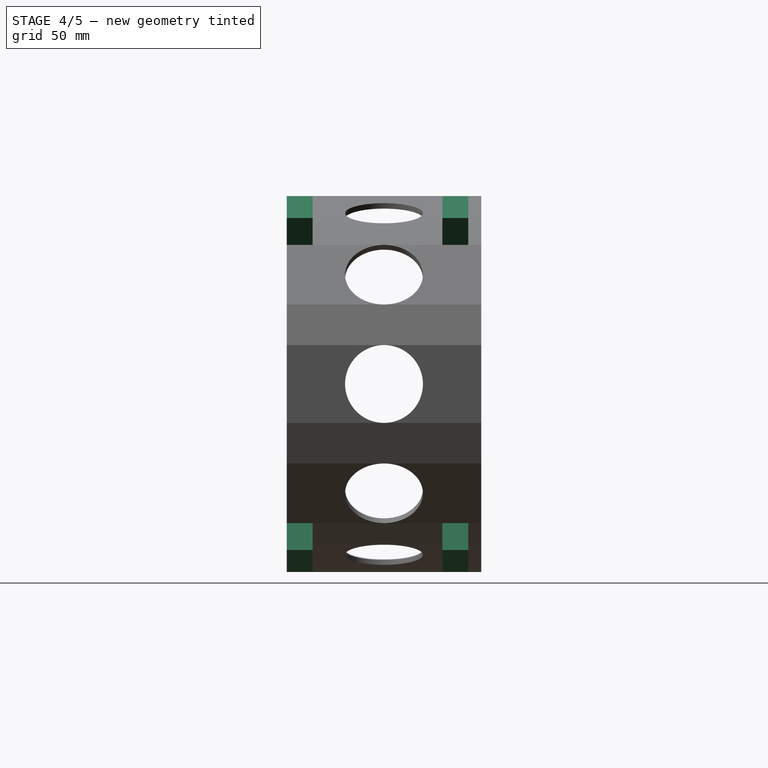
[diagram: stage 4 of 5 — right view after this stage's code; geometry added in this stage tinted green]
FEATURE [Sketcher::SketchObject] Sketch013
  ExternalGeometry = -> [Pocket011]
  FullyConstrained = true
  MapMode = 5
  Placement = pos=(45.7307,0,79.2078) rot=(0.258819,0,0.965926;3.14159rad)
  Support = -> [Pocket011]
  sketch-geometry (8):
    g0: LineSegment StartX=-51.1381 StartY=5 StartZ=0 EndX=-34.4758 EndY=5 EndZ=0
    g1: LineSegment StartX=-34.4758 StartY=5 StartZ=0 EndX=-34.4758 EndY=15 EndZ=0
    g2: LineSegment StartX=-34.4758 StartY=15 StartZ=0 EndX=-51.1381 EndY=15 EndZ=0
    g3: LineSegment StartX=-51.1381 StartY=15 StartZ=0 EndX=-51.1381 EndY=5 EndZ=0
    g4: LineSegment StartX=-51.1381 StartY=75 StartZ=0 EndX=-34.4758 EndY=75 EndZ=0
    g5: LineSegment StartX=-34.4758 StartY=75 StartZ=0 EndX=-34.4758 EndY=65 EndZ=0
    g6: LineSegment StartX=-34.4758 StartY=65 StartZ=0 EndX=-51.1381 EndY=65 EndZ=0
    g7: LineSegment StartX=-51.1381 StartY=65 StartZ=0 EndX=-51.1381 EndY=75 EndZ=0
  constraints (23):
    c: Coincident(g0,g1)
    c: Coincident(g1,g2)
    c: Coincident(g2,g3)
    c: Coincident(g3,g0)
    c: Horizontal(g0)
    c: Horizontal(g2)
    c: Vertical(g1)
    c: Vertical(g3)
    c: PointOnObject(g0,g-4)
    c: PointOnObject(g1,g-3)
    c: Distance(g-4,g0) = 5
    c: DistanceY(g3,g3) = 10
    c: Coincident(g4,g5)
    c: Coincident(g5,g6)
    c: Coincident(g6,g7)
    c: Coincident(g7,g4)
    c: Horizontal(g4)
    c: Horizontal(g6)
    c: Vertical(g5)
    c: Vertical(g7)
    c: Coincident(g4,g-5)
    c: PointOnObject(g5,g-6)
    c: DistanceY(g5,g5) = 10
FEATURE [PartDesign::Pad] Pad001
  BaseFeature = -> Pocket011
  Direction = (1,1,1)
  Length = 12
  Length2 = 100
  Placement = pos=(0,0,0) rot=(1,0,0;1.5708rad)
  Profile = -> Sketch013
  Type = 0
FEATURE [Sketcher::SketchObject] Sketch014
  ExternalGeometry = -> [Pad001]
  FullyConstrained = true
  MapMode = 5
  Placement = pos=(-45.7307,0,79.2078) rot=(-0.258819,0,0.965926;3.14159rad)
  Support = -> [Pad001]
  sketch-geometry (4):
    g0: LineSegment StartX=34.4758 StartY=5 StartZ=0 EndX=51.1381 EndY=5 EndZ=0
    g1: LineSegment StartX=51.1381 StartY=5 StartZ=0 EndX=51.1381 EndY=15 EndZ=0
    g2: LineSegment StartX=51.1381 StartY=15 StartZ=0 EndX=34.4758 EndY=15 EndZ=0
    g3: LineSegment StartX=34.4758 StartY=15 StartZ=0 EndX=34.4758 EndY=5 EndZ=0
  constraints (12):
    c: Coincident(g0,g1)
    c: Coincident(g1,g2)
    c: Coincident(g2,g3)
    c: Coincident(g3,g0)
    c: Horizontal(g0)
    c: Horizontal(g2)
    c: Vertical(g1)
    c: Vertical(g3)
    c: PointOnObject(g0,g-3)
    c: PointOnObject(g1,g-4)
    c: Distance(g-3,g0) = 5
    c: DistanceY(g3,g3) = 10
FEATURE [PartDesign::Pad] Pad002
  BaseFeature = -> Pad001
  Direction = (1,1,1)
  Length = 12
  Length2 = 100
  Placement = pos=(0,0,0) rot=(1,0,0;1.5708rad)
  Profile = -> Sketch014
  Type = 0
FEATURE [Sketcher::SketchObject] Sketch015
  ExternalGeometry = -> [Pad002]
  FullyConstrained = true
  MapMode = 5
  Placement = pos=(-45.7307,0,-79.2078) rot=(0.965926,0,-0.258819;3.14159rad)
  Support = -> [Pad002]
  sketch-geometry (8):
    g0: LineSegment StartX=-51.1381 StartY=5 StartZ=0 EndX=-34.4758 EndY=5 EndZ=0
    g1: LineSegment StartX=-34.4758 StartY=5 StartZ=0 EndX=-34.4758 EndY=15 EndZ=0
    g2: LineSegment StartX=-34.4758 StartY=15 StartZ=0 EndX=-51.1381 EndY=15 EndZ=0
    g3: LineSegment StartX=-51.1381 StartY=15 StartZ=0 EndX=-51.1381 EndY=5 EndZ=0
    g4: LineSegment StartX=-51.1381 StartY=75 StartZ=0 EndX=-34.4758 EndY=75 EndZ=0
    g5: LineSegment StartX=-34.4758 StartY=75 StartZ=0 EndX=-34.4758 EndY=65 EndZ=0
    g6: LineSegment StartX=-34.4758 StartY=65 StartZ=0 EndX=-51.1381 EndY=65 EndZ=0
    g7: LineSegment StartX=-51.1381 StartY=65 StartZ=0 EndX=-51.1381 EndY=75 EndZ=0
  constraints (23):
    c: Coincident(g0,g1)
    c: Coincident(g1,g2)
    c: Coincident(g2,g3)
    c: Coincident(g3,g0)
    c: Horizontal(g0)
    c: Horizontal(g2)
    c: Vertical(g1)
    c: Vertical(g3)
    c: PointOnObject(g0,g-3)
    c: PointOnObject(g1,g-4)
    c: Distance(g-3,g0) = 5
    c: DistanceY(g3,g3) = 10
    c: Coincident(g4,g5)
    c: Coincident(g5,g6)
    c: Coincident(g6,g7)
    c: Coincident(g7,g4)
    c: Horizontal(g4)
    c: Horizontal(g6)
    c: Vertical(g5)
    c: Vertical(g7)
    c: Coincident(g4,g-5)
    c: PointOnObject(g5,g-6)
    c: DistanceY(g5,g5) = 10
FEATURE [PartDesign::Pad] Pad003
  BaseFeature = -> Pad002
  Direction = (1,1,1)
  Length = 12
  Length2 = 100
  Placement = pos=(0,0,0) rot=(1,0,0;1.5708rad)
  Profile = -> Sketch015
  Type = 0
FEATURE [Sketcher::SketchObject] Sketch016
  ExternalGeometry = -> [Pad003]
  FullyConstrained = true
  MapMode = 5
  Placement = pos=(45.7307,0,-79.2078) rot=(0.965926,0,0.258819;3.14159rad)
  Support = -> [Pad003]
  sketch-geometry (8):
    g0: LineSegment StartX=34.4758 StartY=5 StartZ=0 EndX=51.1381 EndY=5 EndZ=0
    g1: LineSegment StartX=51.1381 StartY=5 StartZ=0 EndX=51.1381 EndY=15 EndZ=0
    g2: LineSegment StartX=51.1381 StartY=15 StartZ=0 EndX=34.4758 EndY=15 EndZ=0
    g3: LineSegment StartX=34.4758 StartY=15 StartZ=0 EndX=34.4758 EndY=5 EndZ=0
    g4: LineSegment StartX=34.4758 StartY=75 StartZ=0 EndX=51.1381 EndY=75 EndZ=0
    g5: LineSegment StartX=51.1381 StartY=75 StartZ=0 EndX=51.1381 EndY=65 EndZ=0
    g6: LineSegment StartX=51.1381 StartY=65 StartZ=0 EndX=34.4758 EndY=65 EndZ=0
    g7: LineSegment StartX=34.4758 StartY=65 StartZ=0 EndX=34.4758 EndY=75 EndZ=0
  constraints (23):
    c: Coincident(g0,g1)
    c: Coincident(g1,g2)
    c: Coincident(g2,g3)
    c: Coincident(g3,g0)
    c: Horizontal(g0)
    c: Horizontal(g2)
    c: Vertical(g1)
    c: Vertical(g3)
    c: PointOnObject(g0,g-3)
    c: PointOnObject(g1,g-4)
    c: Distance(g-3,g0) = 5
    c: DistanceY(g3,g3) = 10
    c: Coincident(g4,g5)
    c: Coincident(g5,g6)
    c: Coincident(g6,g7)
    c: Coincident(g7,g4)
    c: Horizontal(g4)
    c: Horizontal(g6)
    c: Vertical(g5)
    c: Vertical(g7)
    c: Coincident(g4,g-5)
    c: PointOnObject(g5,g-6)
    c: DistanceY(g7,g7) = 10
FEATURE [PartDesign::Pad] Pad004
  BaseFeature = -> Pad003
  Direction = (1,1,1)
  Length = 12
  Length2 = 100
  Placement = pos=(0,0,0) rot=(1,0,0;1.5708rad)
  Profile = -> Sketch016
  Type = 0
FEATURE [Sketcher::SketchObject] Sketch017
  ExternalGeometry = -> [Pad004]
  FullyConstrained = true
  MapMode = 5
  Placement = pos=(-45.7307,0,79.2078) rot=(-0.258819,0,0.965926;3.14159rad)
  Support = -> [Pad004]
  sketch-geometry (4):
    g0: LineSegment StartX=34.4758 StartY=75 StartZ=0 EndX=51.1381 EndY=75 EndZ=0
    g1: LineSegment StartX=51.1381 StartY=75 StartZ=0 EndX=51.1381 EndY=65 EndZ=0
    g2: LineSegment StartX=51.1381 StartY=65 StartZ=0 EndX=34.4758 EndY=65 EndZ=0
    g3: LineSegment StartX=34.4758 StartY=65 StartZ=0 EndX=34.4758 EndY=75 EndZ=0
  constraints (11):
    c: Coincident(g0,g1)
    c: Coincident(g1,g2)
    c: Coincident(g2,g3)
    c: Coincident(g3,g0)
    c: Horizontal(g0)
    c: Horizontal(g2)
    c: Vertical(g1)
    c: Vertical(g3)
    c: Coincident(g0,g-3)
    c: PointOnObject(g1,g-4)
    c: DistanceY(g1,g1) = 10
FEATURE [PartDesign::Pad] Pad005
  BaseFeature = -> Pad004
  Direction = (1,1,1)
  Length = 12
  Length2 = 100
  Placement = pos=(0,0,0) rot=(1,0,0;1.5708rad)
  Profile = -> Sketch017
  Type = 0
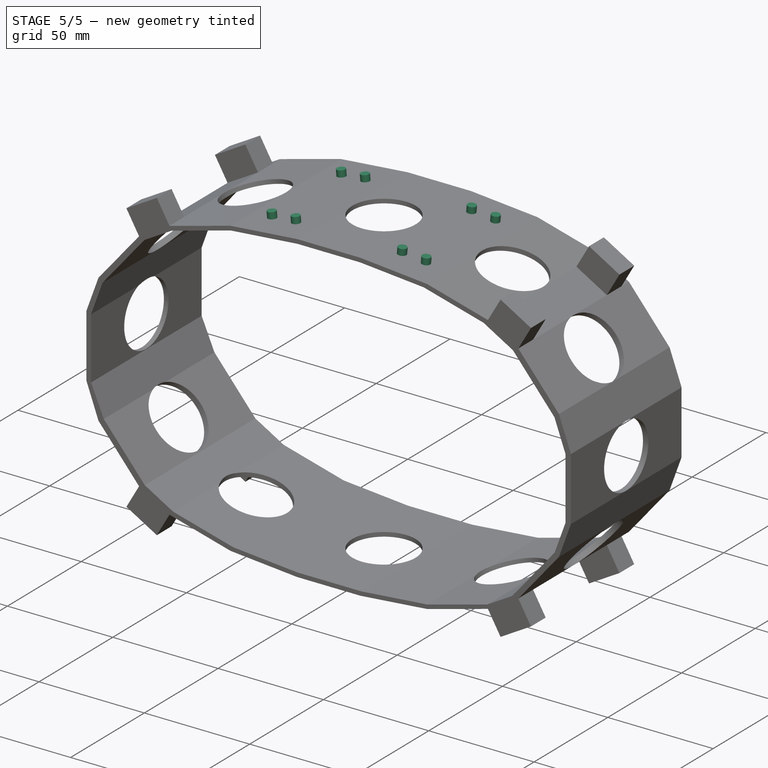
[diagram: stage 5 of 5 — iso view after this stage's code; geometry added in this stage tinted green]
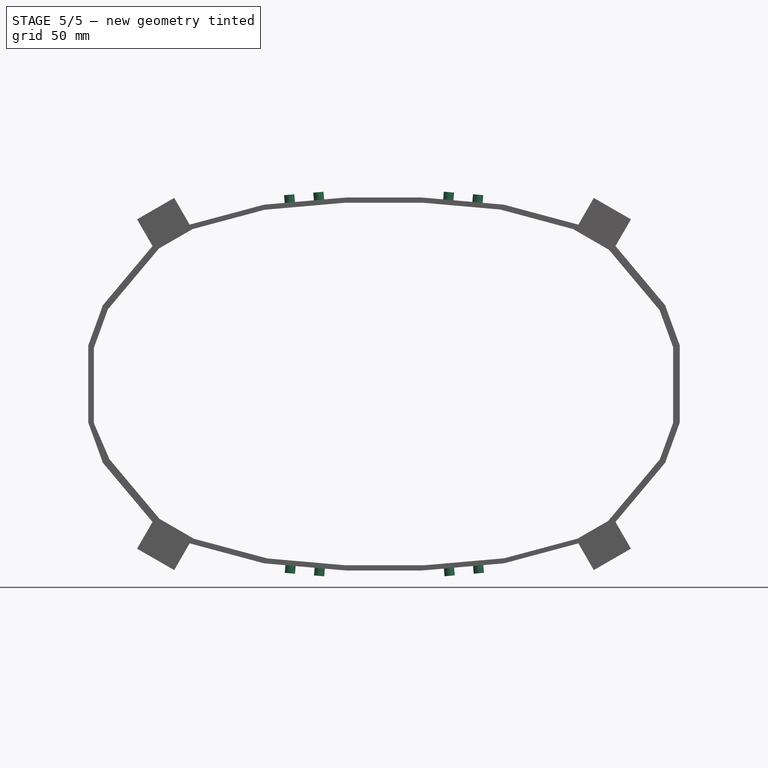
[diagram: stage 5 of 5 — front view after this stage's code; geometry added in this stage tinted green]
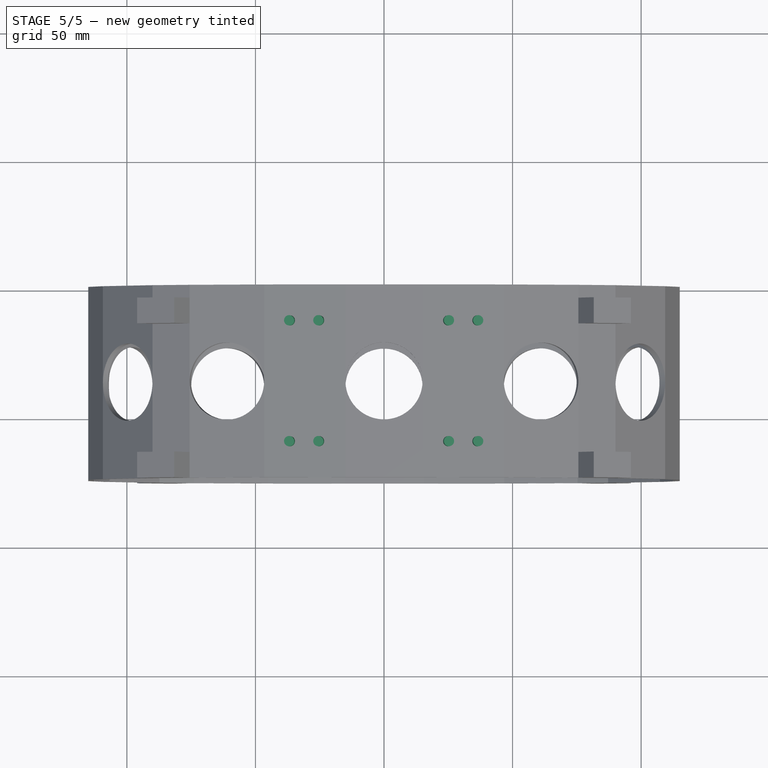
[diagram: stage 5 of 5 — top view after this stage's code; geometry added in this stage tinted green]
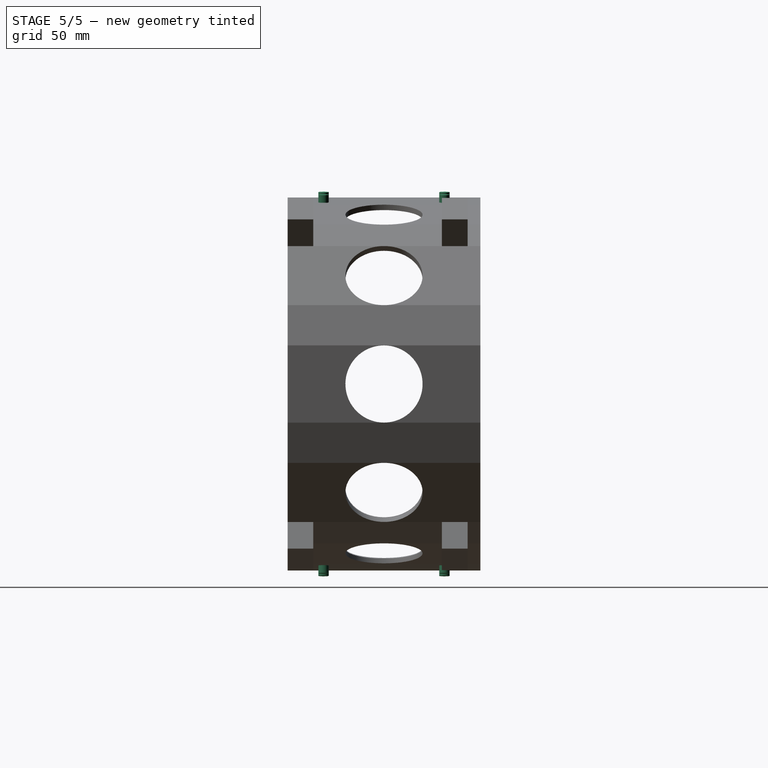
[diagram: stage 5 of 5 — right view after this stage's code; geometry added in this stage tinted green]
FEATURE [Sketcher::SketchObject] Sketch018
  ExternalGeometry = -> [Pad005]
  FullyConstrained = false
  MapMode = 5
  Placement = pos=(-6.40869,0,73.2516) rot=(-0.043619,0,0.999048;3.14159rad)
  Support = -> [Pad005]
  sketch-geometry (4):
    g0: Circle CenterX=30.3241 CenterY=61 CenterZ=0 NormalX=0 NormalY=0 NormalZ=1 AngleXU=0 Radius=2
    g1: Circle CenterX=18.9241 CenterY=61 CenterZ=0 NormalX=0 NormalY=0 NormalZ=1 AngleXU=0 Radius=2
    g2: Circle CenterX=18.9241 CenterY=14 CenterZ=0 NormalX=0 NormalY=0 NormalZ=1 AngleXU=0 Radius=2
    g3: Circle CenterX=30.3241 CenterY=14 CenterZ=0 NormalX=0 NormalY=0 NormalZ=1 AngleXU=0 Radius=2
  constraints (8):
    c: DistanceX(g1,g0) = 11.4
    c: Distance(g-3) = 37.5
    c: Distance(g1,g-3) = 10.3
    c: Distance(g1,g-4) = 14
    c: Radius(g0) = 2
    c: Radius(g1) = 2
    c: Radius(g2) = 2
    c: Radius(g3) = 2
FEATURE [PartDesign::Pad] Pad006
  BaseFeature = -> Pad005
  Direction = (-0.0871557,0,0.996195)
  Length = 3
  Length2 = 10
  Placement = pos=(0,0,0) rot=(1,0,0;1.5708rad)
  Profile = -> Sketch018
  ReferenceAxis = -> Sketch018 [N_Axis]
  Type = 0
FEATURE [Sketcher::SketchObject] Sketch019
  ExternalGeometry = -> [Pad006]
  FullyConstrained = false
  MapMode = 5
  Placement = pos=(6.40869,8.1e-15,73.2516) rot=(0.043619,0,0.999048;3.14159rad)
  Support = -> [Pad006]
  sketch-geometry (4):
    g0: Circle CenterX=-30.0546 CenterY=61 CenterZ=0 NormalX=0 NormalY=0 NormalZ=1 AngleXU=0 Radius=2
    g1: Circle CenterX=-18.6546 CenterY=61 CenterZ=0 NormalX=0 NormalY=0 NormalZ=1 AngleXU=0 Radius=2
    g2: Circle CenterX=-18.6546 CenterY=14 CenterZ=0 NormalX=0 NormalY=0 NormalZ=1 AngleXU=0 Radius=2
    g3: Circle CenterX=-30.0546 CenterY=14 CenterZ=0 NormalX=0 NormalY=0 NormalZ=1 AngleXU=0 Radius=2
  constraints (4):
    c: Radius(g1) = 2
    c: Radius(g0) = 2
    c: Radius(g3) = 2
    c: Radius(g2) = 2
FEATURE [PartDesign::Pad] Pad007
  BaseFeature = -> Pad006
  Direction = (0.0871557,1e-16,0.996195)
  Length = 3
  Length2 = 10
  Placement = pos=(0,0,0) rot=(1,0,0;1.5708rad)
  Profile = -> Sketch019
  ReferenceAxis = -> Sketch019 [N_Axis]
  Type = 0
FEATURE [Sketcher::SketchObject] Sketch020
  ExternalGeometry = -> [Pad007]
  FullyConstrained = false
  MapMode = 5
  Placement = pos=(-6.40869,-1.63e-14,-73.2516) rot=(0.999048,0,-0.043619;3.14159rad)
  Support = -> [Pad007]
  sketch-geometry (4):
    g0: Circle CenterX=-30.0546 CenterY=61 CenterZ=0 NormalX=0 NormalY=0 NormalZ=1 AngleXU=0 Radius=2
    g1: Circle CenterX=-18.6546 CenterY=61 CenterZ=0 NormalX=0 NormalY=0 NormalZ=1 AngleXU=0 Radius=2
    g2: Circle CenterX=-30.0546 CenterY=14 CenterZ=0 NormalX=0 NormalY=0 NormalZ=1 AngleXU=0 Radius=2
    g3: Circle CenterX=-18.6546 CenterY=14 CenterZ=0 NormalX=0 NormalY=0 NormalZ=1 AngleXU=0 Radius=2
  constraints (6):
    c: Distance(g0,g-3) = 14
    c: Distance(g0,g-4) = 10.3
    c: DistanceX(g0,g1) = 11.4
    c: Radius(g3) = 2
    c: Radius(g2) = 2
    c: Radius(g1) = 2
FEATURE [PartDesign::Pad] Pad008
  BaseFeature = -> Pad007
  Direction = (-0.0871557,-2e-16,-0.996195)
  Length = 3
  Length2 = 10
  Placement = pos=(0,0,0) rot=(1,0,0;1.5708rad)
  Profile = -> Sketch020
  ReferenceAxis = -> Sketch020 [N_Axis]
  Type = 0
FEATURE [Sketcher::SketchObject] Sketch021
  ExternalGeometry = -> [Pad008]
  FullyConstrained = false
  MapMode = 5
  Placement = pos=(6.40869,-2.44e-14,-73.2516) rot=(0.999048,0,0.043619;3.14159rad)
  Support = -> [Pad008]
  sketch-geometry (4):
    g0: Circle CenterX=18.9241 CenterY=61 CenterZ=0 NormalX=0 NormalY=0 NormalZ=1 AngleXU=0 Radius=2
    g1: Circle CenterX=30.3241 CenterY=61 CenterZ=0 NormalX=0 NormalY=0 NormalZ=1 AngleXU=0 Radius=2
    g2: Circle CenterX=18.9241 CenterY=14 CenterZ=0 NormalX=0 NormalY=0 NormalZ=1 AngleXU=0 Radius=2
    g3: Circle CenterX=30.3241 CenterY=14 CenterZ=0 NormalX=0 NormalY=0 NormalZ=1 AngleXU=0 Radius=2
  constraints (4):
    c: Radius(g0) = 2
    c: Radius(g1) = 2
    c: Radius(g2) = 2
    c: Radius(g3) = 2
FEATURE [PartDesign::Pad] Pad009
  BaseFeature = -> Pad008
  Direction = (0.0871557,-3e-16,-0.996195)
  Length = 3
  Length2 = 10
  Placement = pos=(0,0,0) rot=(1,0,0;1.5708rad)
  Profile = -> Sketch021
  ReferenceAxis = -> Sketch021 [N_Axis]
  Type = 0
FEATURE [PartDesign::Body] Body
  Group = -> [Sketch,Pad,Sketch001,Pocket,Sketch002,Pocket001,Sketch003,Pocket002,Sketch004,Pocket003,Sketch005,Pocket004,Sketch006,Pocket005,Sketch007,Pocket006,Sketch008,Pocket007,Sketch009,Pocket008,Sketch010,Pocket009,Sketch011,Pocket010,Sketch012,Pocket011,Sketch013,Pad001,Sketch014,Pad002,Sketch015,Pad003,Sketch016,Pad004,Sketch017,Pad005,Sketch018,Pad006,Sketch019,Pad007,Sketch020,Pad008,Sketch021,+1 more]
  Origin = -> Origin
  Tip = -> Pad009
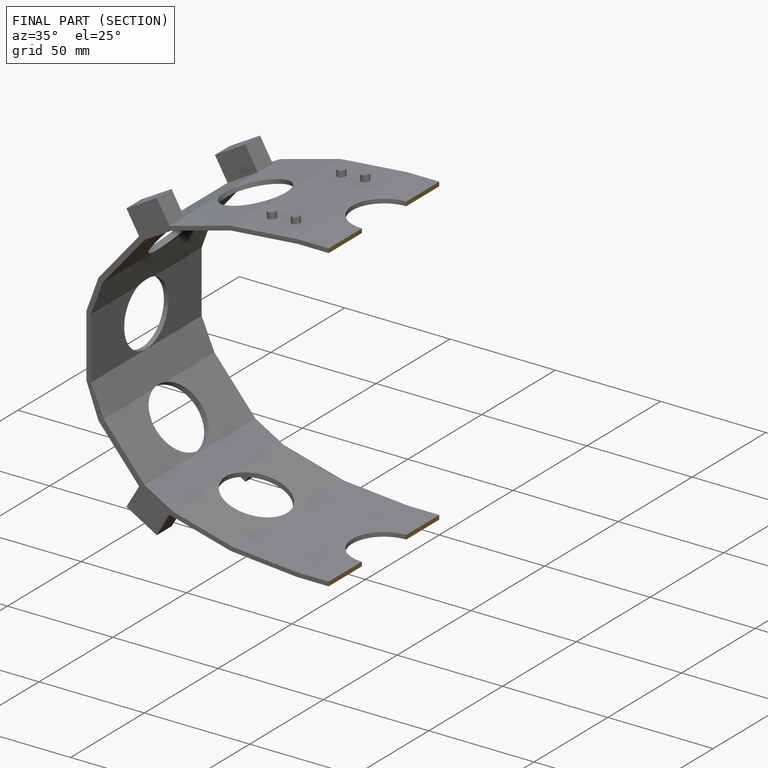
[diagram: finished part — half-section view (interior)]
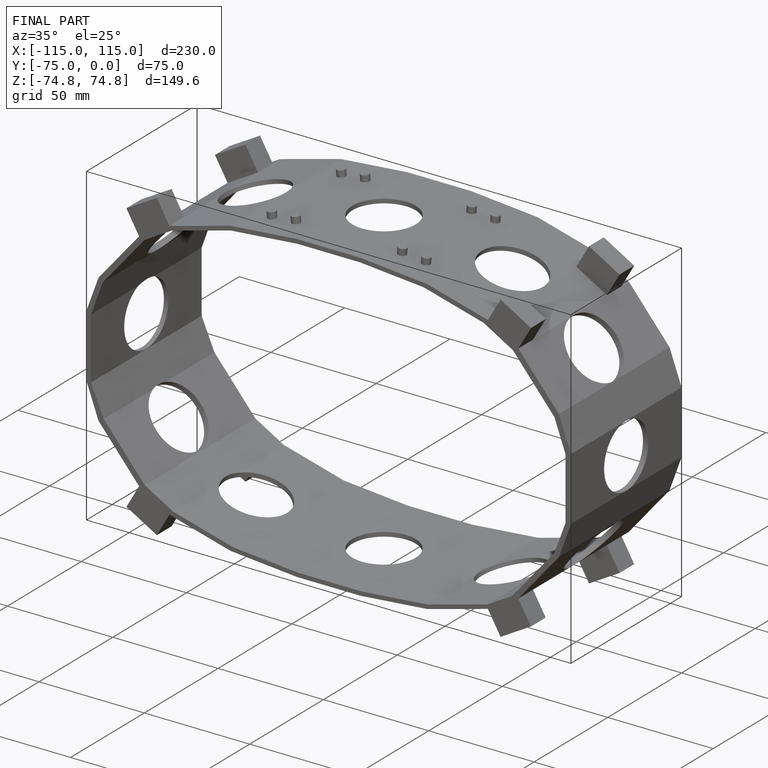
[diagram: finished part — iso view with bounding-box wireframe]
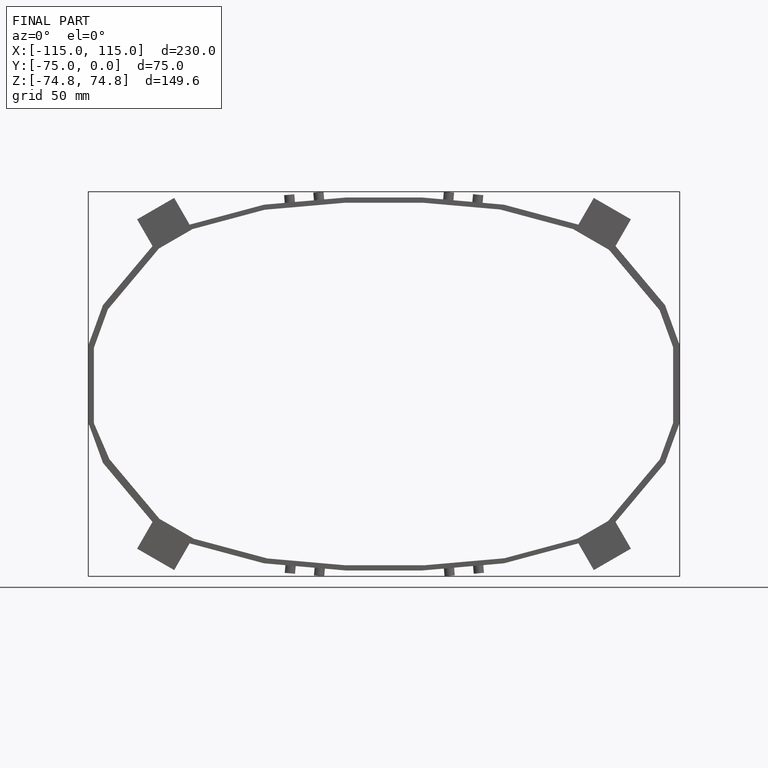
[diagram: finished part — front view with bounding-box wireframe]
